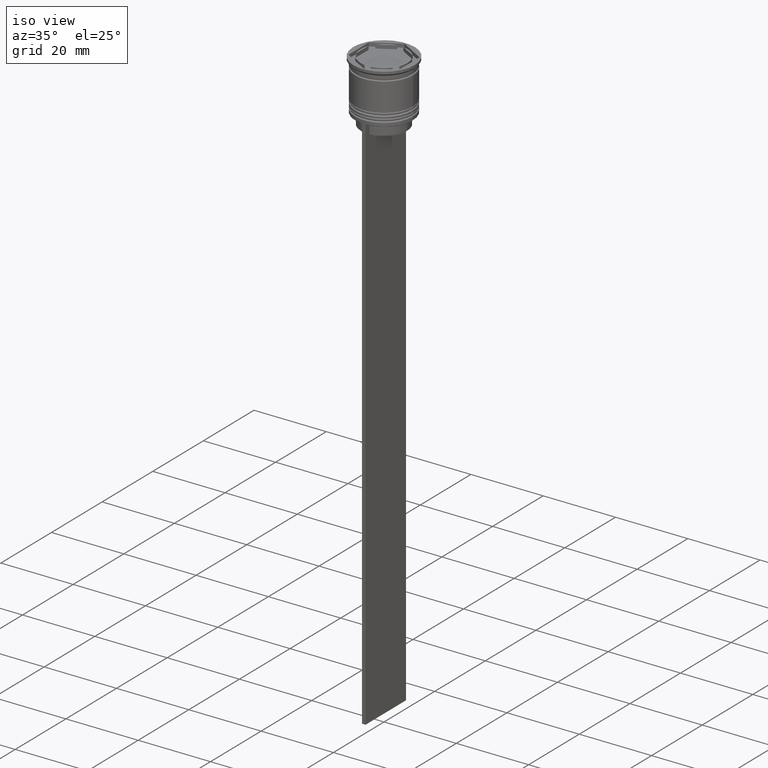
[diagram: clean part render]
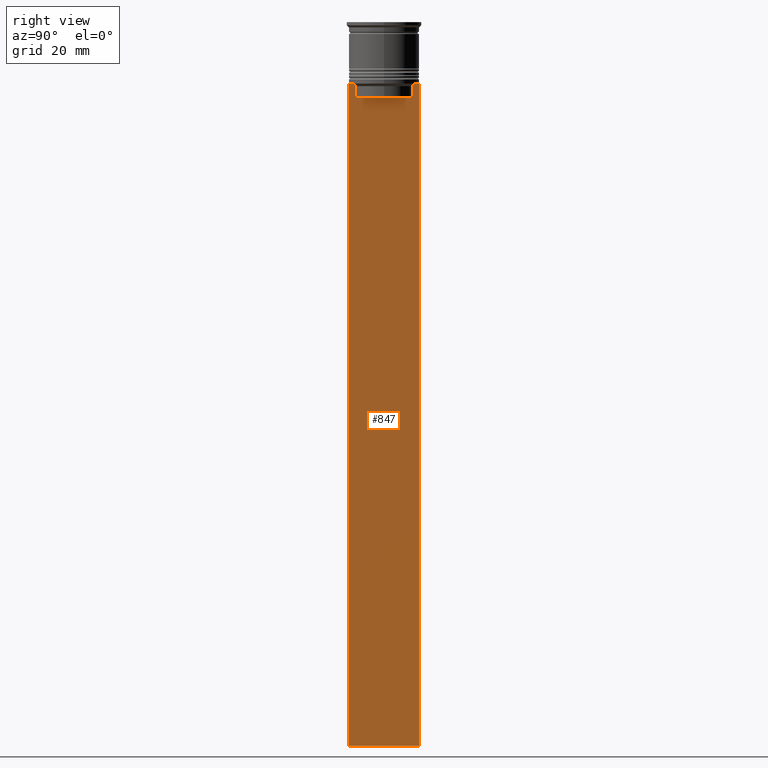
[diagram: tour spotlight — one face highlighted and labeled with its STEP entity id]
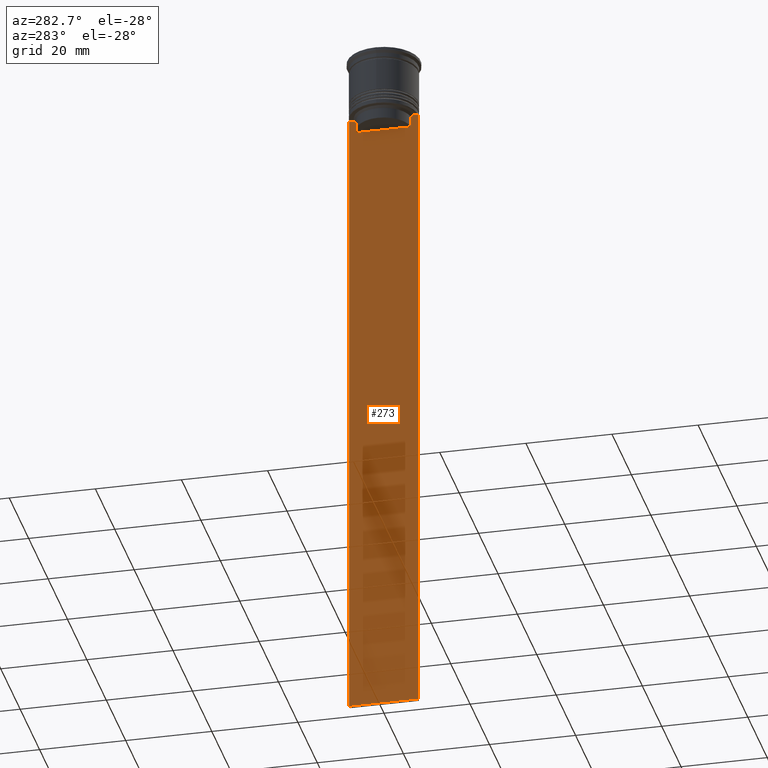
[diagram: tour spotlight — one face highlighted and labeled with its STEP entity id]
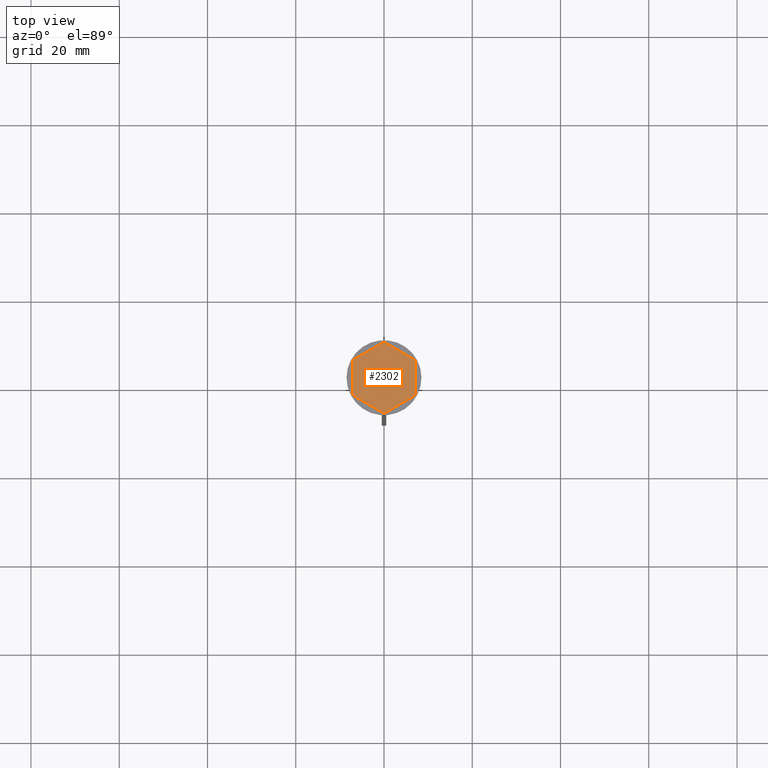
[diagram: tour spotlight — one face highlighted and labeled with its STEP entity id]
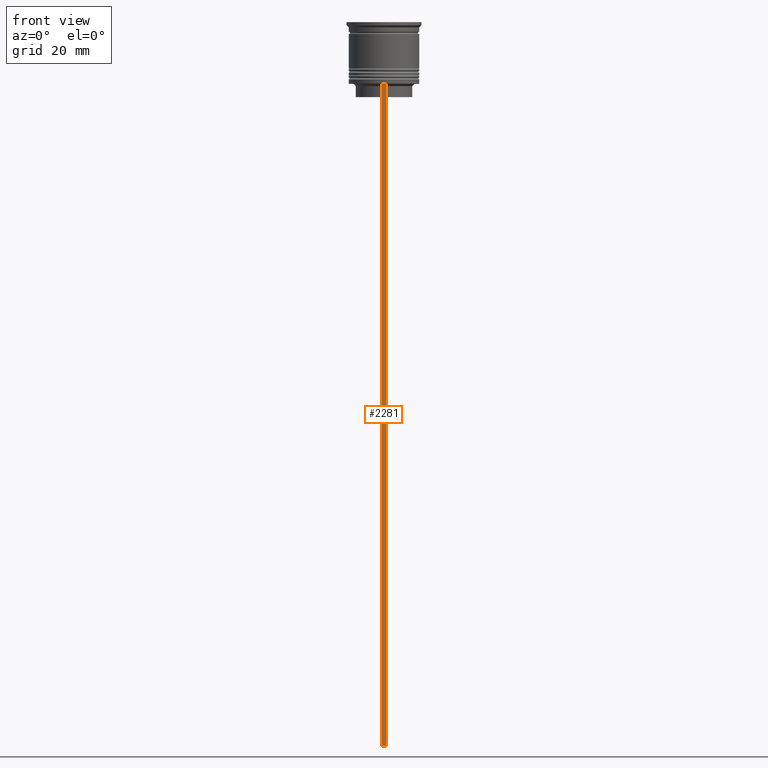
[diagram: tour spotlight — one face highlighted and labeled with its STEP entity id]
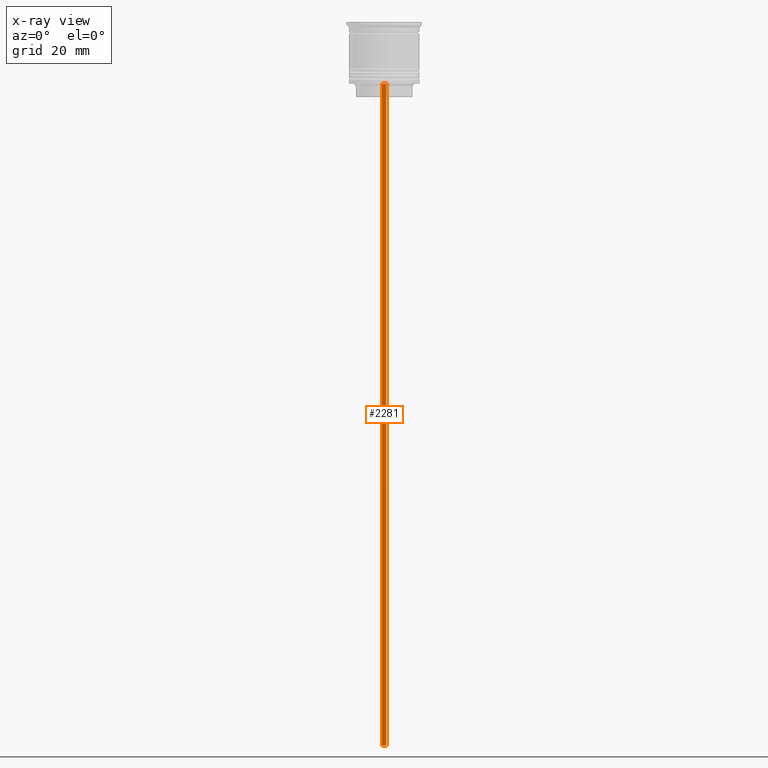
[diagram: x-ray of the same camera — body ghosted, this tour face saturated]
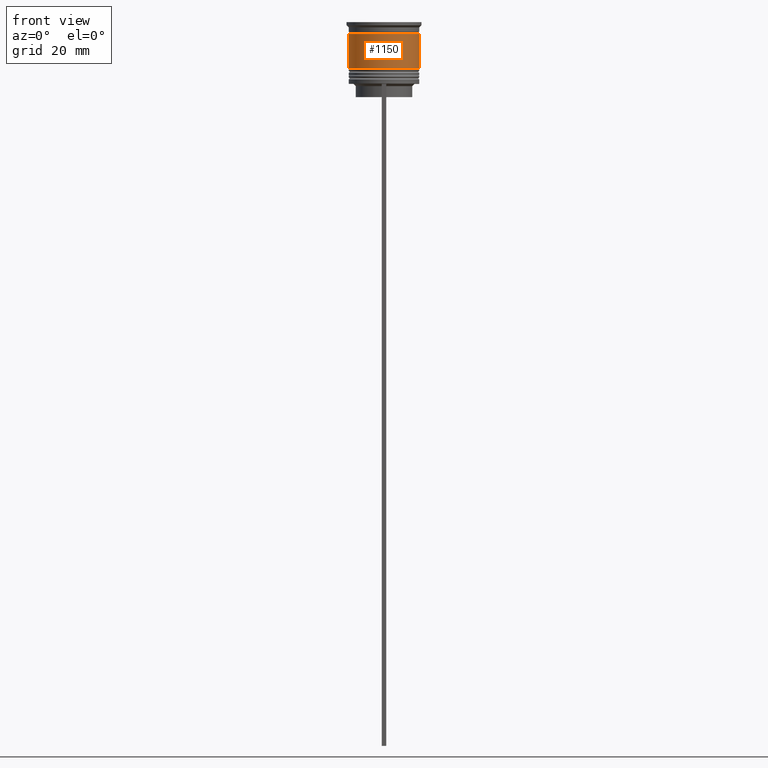
[diagram: tour spotlight — one face highlighted and labeled with its STEP entity id]
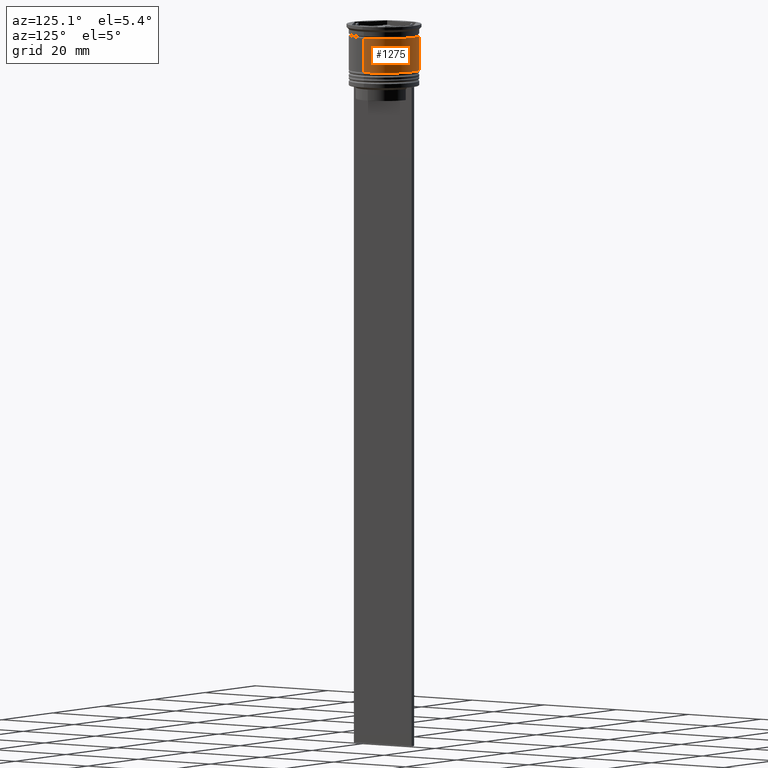
[diagram: tour spotlight — one face highlighted and labeled with its STEP entity id]
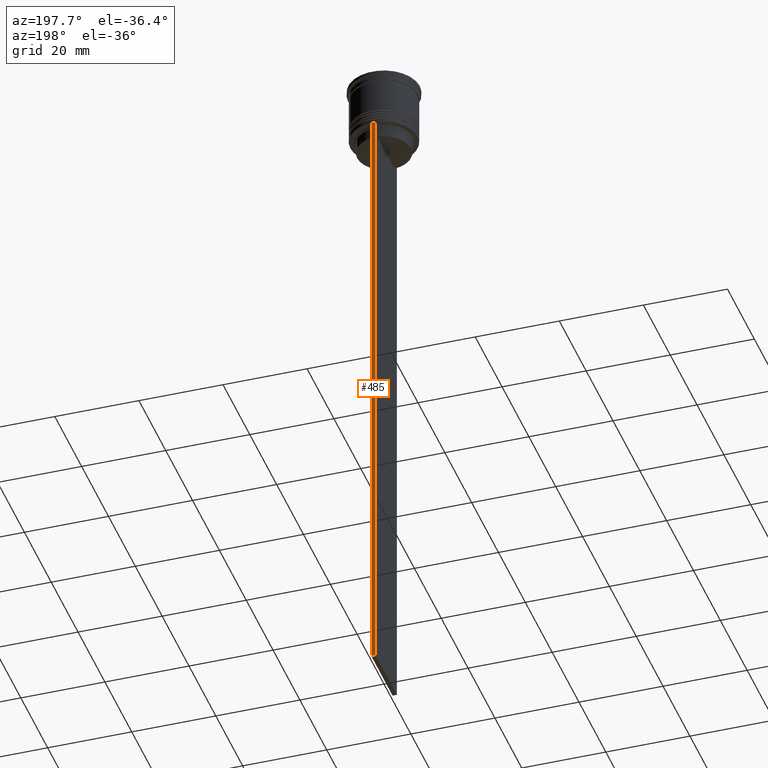
[diagram: tour spotlight — one face highlighted and labeled with its STEP entity id]
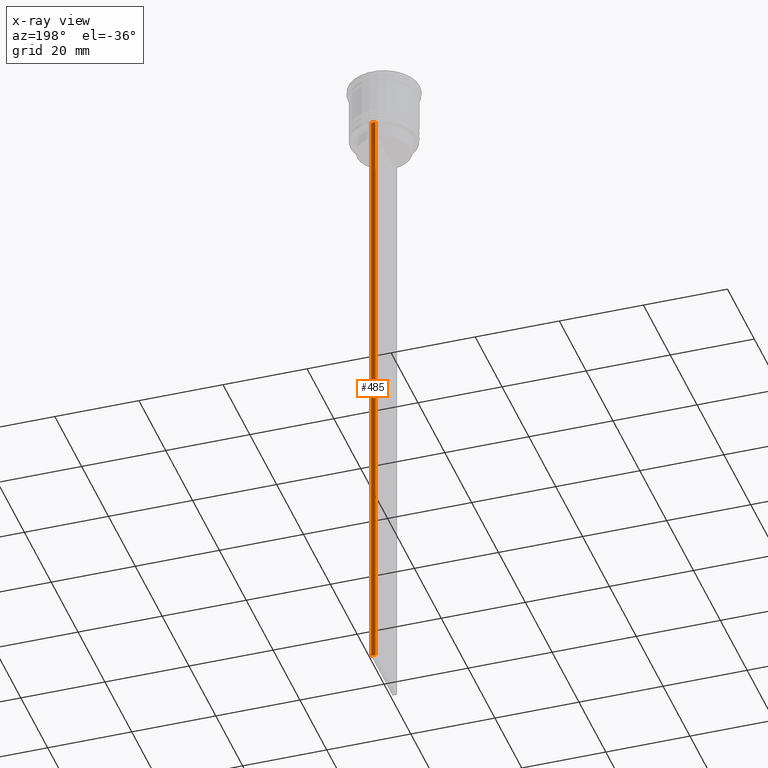
[diagram: x-ray of the same camera — body ghosted, this tour face saturated]
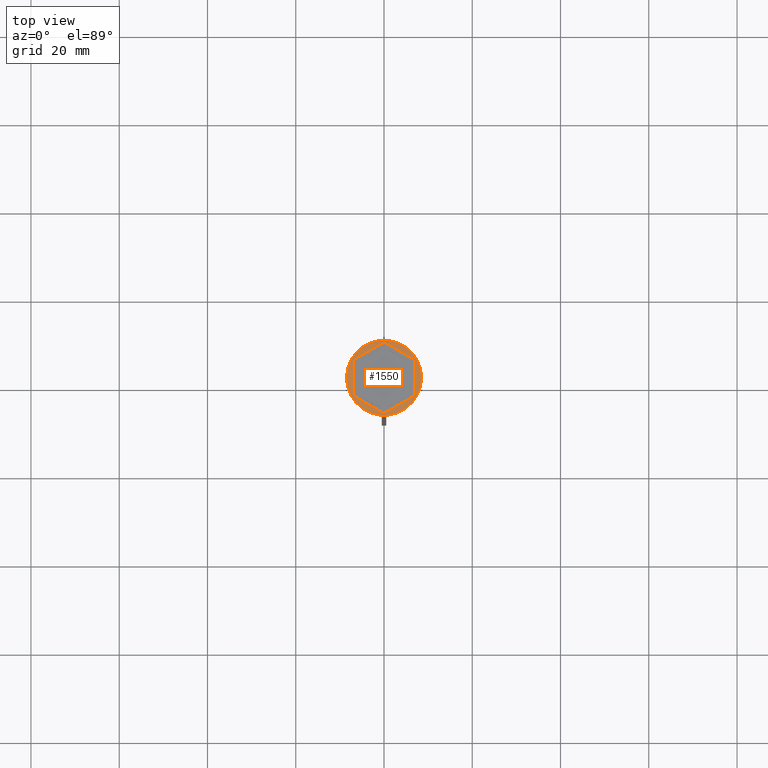
[diagram: tour spotlight — one face highlighted and labeled with its STEP entity id]
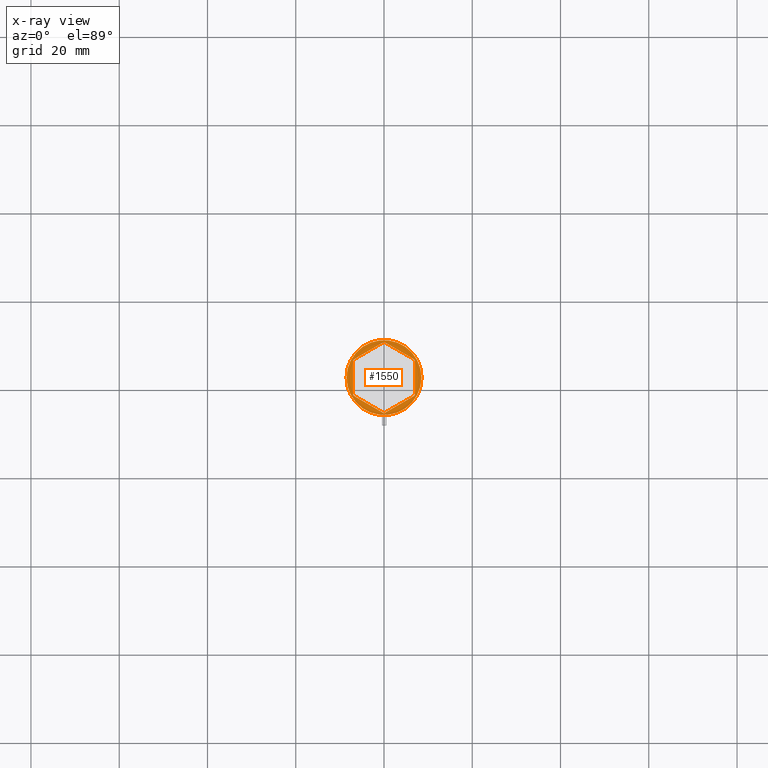
[diagram: x-ray of the same camera — body ghosted, this tour face saturated]
A machine part: a face-by-face anatomy tour. The part has 90 B-rep faces; the first image is the clean iso view, then the 8 largest visible faces are spotlighted one at a time (largest first), each with its STEP entity span.

Face 1 — right view, entity #847. In plain terms, the highlighted planar face has unit normal (-1, 0, 0).
Definition (entity closure, byte-faithful):
#102 = DIRECTION ( 'NONE',  ( 0.000000000000000000, -1.000000000000000000, 0.000000000000000000 ) ) ;
#136 = VERTEX_POINT ( 'NONE', #596 ) ;
#183 = VERTEX_POINT ( 'NONE', #657 ) ;
#200 = DIRECTION ( 'NONE',  ( 0.000000000000000000, -1.000000000000000000, 0.000000000000000000 ) ) ;
#233 = ORIENTED_EDGE ( 'NONE', *, *, #848, .T. ) ;
#255 = VECTOR ( 'NONE', #102, 1000.000000000000000 ) ;
#284 = CARTESIAN_POINT ( 'NONE',  ( 0.5000000000000001110, -8.000000000000003553, -14.00000000000000178 ) ) ;
#309 = DIRECTION ( 'NONE',  ( 0.000000000000000000, 0.000000000000000000, -1.000000000000000000 ) ) ;
#374 = ORIENTED_EDGE ( 'NONE', *, *, #1525, .T. ) ;
#396 = VERTEX_POINT ( 'NONE', #963 ) ;
#427 = CARTESIAN_POINT ( 'NONE',  ( 0.5000000000000001110, 7.999999999999996447, -163.9999999999999716 ) ) ;
#428 = CARTESIAN_POINT ( 'NONE',  ( 0.5000000000000001110, 6.547597841304911626, -14.33335192459222718 ) ) ;
#435 = EDGE_CURVE ( 'NONE', #1912, #136, #601, .T. ) ;
#474 = CARTESIAN_POINT ( 'NONE',  ( 0.5000000000000001110, 6.714736947114692711, -14.16668390704818847 ) ) ;
#562 = CARTESIAN_POINT ( 'NONE',  ( 0.5000000000000001110, -8.000000000000003553, -14.00000000000000178 ) ) ;
#564 = VERTEX_POINT ( 'NONE', #1041 ) ;
#592 = EDGE_CURVE ( 'NONE', #2283, #396, #1892, .T. ) ;
#596 = CARTESIAN_POINT ( 'NONE',  ( 0.5000000000000001110, -7.884161337770806632, -14.00000000000000178 ) ) ;
#598 = ORIENTED_EDGE ( 'NONE', *, *, #2262, .F. ) ;
#599 = CARTESIAN_POINT ( 'NONE',  ( 0.5000000000000001110, 6.380438856379708312, -17.00000000000000000 ) ) ;
#601 = LINE ( 'NONE', #746, #1097 ) ;
#628 = ORIENTED_EDGE ( 'NONE', *, *, #1287, .T. ) ;
#646 = EDGE_CURVE ( 'NONE', #136, #1157, #2420, .T. ) ;
#657 = CARTESIAN_POINT ( 'NONE',  ( 0.5000000000000001110, -6.380438856379708312, -14.50000000000000000 ) ) ;
#659 = VECTOR ( 'NONE', #1376, 1000.000000000000000 ) ;
#685 = EDGE_CURVE ( 'NONE', #1157, #689, #1072, .T. ) ;
#687 = CARTESIAN_POINT ( 'NONE',  ( 0.5000000000000001110, -6.380438856379708312, -14.50000000000000000 ) ) ;
#689 = VERTEX_POINT ( 'NONE', #880 ) ;
#744 = DIRECTION ( 'NONE',  ( 0.000000000000000000, -1.000000000000000000, 0.000000000000000000 ) ) ;
#746 = CARTESIAN_POINT ( 'NONE',  ( 0.5000000000000001110, -8.000000000000003553, -14.00000000000000178 ) ) ;
#783 = LINE ( 'NONE', #2139, #1635 ) ;
#818 = LINE ( 'NONE', #841, #659 ) ;
#830 = CARTESIAN_POINT ( 'NONE',  ( 0.5000000000000001110, -8.000000000000003553, -14.00000000000000178 ) ) ;
#841 = CARTESIAN_POINT ( 'NONE',  ( 0.5000000000000001110, -6.380438856379708312, 0.000000000000000000 ) ) ;
#844 = LINE ( 'NONE', #284, #1879 ) ;
#847 = ADVANCED_FACE ( 'NONE', ( #1077 ), #1848, .F. ) ;
#848 = EDGE_CURVE ( 'NONE', #183, #1912, #1771, .T. ) ;
#880 = CARTESIAN_POINT ( 'NONE',  ( 0.5000000000000001110, -8.000000000000003553, -163.9999999999999716 ) ) ;
#883 = EDGE_CURVE ( 'NONE', #689, #1693, #2072, .T. ) ;
#884 = DIRECTION ( 'NONE',  ( -1.000000000000000000, 0.000000000000000000, 0.000000000000000000 ) ) ;
#887 = CARTESIAN_POINT ( 'NONE',  ( 0.5000000000000001110, -8.000000000000003553, -163.9999999999999716 ) ) ;
#893 = CARTESIAN_POINT ( 'NONE',  ( 0.5000000000000001110, -8.000000000000003553, 2.031219541881394530 ) ) ;
#950 = ORIENTED_EDGE ( 'NONE', *, *, #646, .T. ) ;
#963 = CARTESIAN_POINT ( 'NONE',  ( 0.5000000000000001110, 6.380438856379708312, -14.50000000000000000 ) ) ;
#1041 = CARTESIAN_POINT ( 'NONE',  ( 0.5000000000000001110, 7.999999999999996447, -14.00000000000000178 ) ) ;
#1058 = CARTESIAN_POINT ( 'NONE',  ( 0.5000000000000001110, 6.399999999999999467, -17.00000000000000000 ) ) ;
#1063 = LINE ( 'NONE', #2014, #1714 ) ;
#1072 = LINE ( 'NONE', #893, #1466 ) ;
#1077 = FACE_OUTER_BOUND ( 'NONE', #2362, .T. ) ;
#1097 = VECTOR ( 'NONE', #200, 1000.000000000000000 ) ;
#1157 = VERTEX_POINT ( 'NONE', #830 ) ;
#1161 = VERTEX_POINT ( 'NONE', #1211 ) ;
#1211 = CARTESIAN_POINT ( 'NONE',  ( 0.5000000000000001110, -6.380438856379708312, -17.00000000000000000 ) ) ;
#1227 = EDGE_CURVE ( 'NONE', #1161, #183, #818, .T. ) ;
#1283 = DIRECTION ( 'NONE',  ( 0.000000000000000000, -1.000000000000000000, 0.000000000000000000 ) ) ;
#1287 = EDGE_CURVE ( 'NONE', #2442, #1161, #2011, .T. ) ;
#1343 = ORIENTED_EDGE ( 'NONE', *, *, #1920, .T. ) ;
#1376 = DIRECTION ( 'NONE',  ( -0.000000000000000000, -0.000000000000000000, 1.000000000000000000 ) ) ;
#1385 = AXIS2_PLACEMENT_3D ( 'NONE', #1703, #884, #1471 ) ;
#1444 = CARTESIAN_POINT ( 'NONE',  ( 0.5000000000000001110, -6.547597841511247019, -14.33335192438652150 ) ) ;
#1448 = CARTESIAN_POINT ( 'NONE',  ( 0.5000000000000001110, -8.000000000000003553, -14.00000000000000178 ) ) ;
#1466 = VECTOR ( 'NONE', #309, 1000.000000000000000 ) ;
#1471 = DIRECTION ( 'NONE',  ( 0.000000000000000000, 0.000000000000000000, 1.000000000000000000 ) ) ;
#1473 = VECTOR ( 'NONE', #744, 1000.000000000000000 ) ;
#1525 = EDGE_CURVE ( 'NONE', #2405, #2283, #1702, .T. ) ;
#1556 = DIRECTION ( 'NONE',  ( 0.000000000000000000, 0.000000000000000000, -1.000000000000000000 ) ) ;
#1576 = CARTESIAN_POINT ( 'NONE',  ( 0.5000000000000001110, 6.881860213634098500, -14.00000000000000178 ) ) ;
#1588 = CARTESIAN_POINT ( 'NONE',  ( 0.5000000000000001110, 6.881860213634098500, -14.00000000000000178 ) ) ;
#1635 = VECTOR ( 'NONE', #1556, 1000.000000000000000 ) ;
#1669 = VECTOR ( 'NONE', #1834, 1000.000000000000000 ) ;
#1693 = VERTEX_POINT ( 'NONE', #427 ) ;
#1702 = LINE ( 'NONE', #562, #1473 ) ;
#1703 = CARTESIAN_POINT ( 'NONE',  ( 0.5000000000000001110, -8.000000000000003553, 2.031219541881394530 ) ) ;
#1714 = VECTOR ( 'NONE', #1810, 1000.000000000000000 ) ;
#1767 = ORIENTED_EDGE ( 'NONE', *, *, #592, .T. ) ;
#1771 = B_SPLINE_CURVE_WITH_KNOTS ( 'NONE', 3,
 ( #687, #1444, #2269, #1863 ),
 .UNSPECIFIED., .F., .F.,
 ( 4, 4 ),
 ( 0.02996184199614751464, 0.03067452609193705923 ),
 .UNSPECIFIED. ) ;
#1810 = DIRECTION ( 'NONE',  ( 0.000000000000000000, 0.000000000000000000, -1.000000000000000000 ) ) ;
#1818 = CARTESIAN_POINT ( 'NONE',  ( 0.5000000000000001110, 7.884161337770806632, -14.00000000000000178 ) ) ;
#1821 = ORIENTED_EDGE ( 'NONE', *, *, #1227, .T. ) ;
#1834 = DIRECTION ( 'NONE',  ( 0.000000000000000000, -1.000000000000000000, 0.000000000000000000 ) ) ;
#1848 = PLANE ( 'NONE',  #1385 ) ;
#1863 = CARTESIAN_POINT ( 'NONE',  ( 0.5000000000000001110, -6.881860213634098500, -14.00000000000000178 ) ) ;
#1879 = VECTOR ( 'NONE', #1283, 1000.000000000000000 ) ;
#1892 = B_SPLINE_CURVE_WITH_KNOTS ( 'NONE', 3,
 ( #1588, #474, #428, #2021 ),
 .UNSPECIFIED., .F., .F.,
 ( 4, 4 ),
 ( 0.01172465562756038263, 0.01243276816391822651 ),
 .UNSPECIFIED. ) ;
#1901 = EDGE_CURVE ( 'NONE', #396, #2442, #1063, .T. ) ;
#1912 = VERTEX_POINT ( 'NONE', #2207 ) ;
#1920 = EDGE_CURVE ( 'NONE', #564, #2405, #844, .T. ) ;
#1939 = ORIENTED_EDGE ( 'NONE', *, *, #435, .T. ) ;
#2011 = LINE ( 'NONE', #1058, #1669 ) ;
#2014 = CARTESIAN_POINT ( 'NONE',  ( 0.5000000000000001110, 6.380438856379708312, 0.000000000000000000 ) ) ;
#2021 = CARTESIAN_POINT ( 'NONE',  ( 0.5000000000000001110, 6.380438856379708312, -14.50000000000000000 ) ) ;
#2072 = LINE ( 'NONE', #887, #2193 ) ;
#2102 = ORIENTED_EDGE ( 'NONE', *, *, #883, .T. ) ;
#2139 = CARTESIAN_POINT ( 'NONE',  ( 0.5000000000000001110, 7.999999999999996447, 2.031219541881394530 ) ) ;
#2193 = VECTOR ( 'NONE', #2219, 1000.000000000000000 ) ;
#2207 = CARTESIAN_POINT ( 'NONE',  ( 0.5000000000000001110, -6.881860213634098500, -14.00000000000000178 ) ) ;
#2219 = DIRECTION ( 'NONE',  ( 0.000000000000000000, 1.000000000000000000, 0.000000000000000000 ) ) ;
#2228 = ORIENTED_EDGE ( 'NONE', *, *, #685, .T. ) ;
#2262 = EDGE_CURVE ( 'NONE', #564, #1693, #783, .T. ) ;
#2269 = CARTESIAN_POINT ( 'NONE',  ( 0.5000000000000001110, -6.714736947305993908, -14.16668390685738821 ) ) ;
#2283 = VERTEX_POINT ( 'NONE', #1576 ) ;
#2362 = EDGE_LOOP ( 'NONE', ( #374, #1767, #2376, #628, #1821, #233, #1939, #950, #2228, #2102, #598, #1343 ) ) ;
#2376 = ORIENTED_EDGE ( 'NONE', *, *, #1901, .T. ) ;
#2405 = VERTEX_POINT ( 'NONE', #1818 ) ;
#2420 = LINE ( 'NONE', #1448, #255 ) ;
#2442 = VERTEX_POINT ( 'NONE', #599 ) ;

Face 2 — auxiliary view, entity #273. In plain terms, the highlighted planar face has unit normal (-1, 0, 0).
Definition (entity closure, byte-faithful):
#49 = ORIENTED_EDGE ( 'NONE', *, *, #2333, .F. ) ;
#60 = LINE ( 'NONE', #412, #1915 ) ;
#93 = CARTESIAN_POINT ( 'NONE',  ( -0.4999999999999998890, -8.000000000000003553, 2.031219541881394530 ) ) ;
#112 = CARTESIAN_POINT ( 'NONE',  ( -0.4999999999999998890, -7.884161337770806632, -14.00000000000000178 ) ) ;
#114 = CARTESIAN_POINT ( 'NONE',  ( -0.4999999999999998890, 6.380438856379708312, 0.000000000000000000 ) ) ;
#119 = LINE ( 'NONE', #909, #1217 ) ;
#186 = VECTOR ( 'NONE', #539, 1000.000000000000000 ) ;
#231 = DIRECTION ( 'NONE',  ( 0.000000000000000000, -1.000000000000000000, 0.000000000000000000 ) ) ;
#246 = B_SPLINE_CURVE_WITH_KNOTS ( 'NONE', 3,
 ( #2268, #334, #547, #1319 ),
 .UNSPECIFIED., .F., .F.,
 ( 4, 4 ),
 ( 0.02996184199614749730, 0.03067452609193703841 ),
 .UNSPECIFIED. ) ;
#273 = ADVANCED_FACE ( 'NONE', ( #2428 ), #300, .T. ) ;
#290 = CARTESIAN_POINT ( 'NONE',  ( -0.4999999999999998890, 7.999999999999996447, -163.9999999999999716 ) ) ;
#300 = PLANE ( 'NONE',  #652 ) ;
#318 = VERTEX_POINT ( 'NONE', #2231 ) ;
#334 = CARTESIAN_POINT ( 'NONE',  ( -0.4999999999999998890, -6.547597841511246131, -14.33335192438652328 ) ) ;
#339 = VERTEX_POINT ( 'NONE', #112 ) ;
#384 = CARTESIAN_POINT ( 'NONE',  ( -0.4999999999999998890, -6.881860213634098500, -14.00000000000000178 ) ) ;
#389 = VERTEX_POINT ( 'NONE', #1921 ) ;
#393 = ORIENTED_EDGE ( 'NONE', *, *, #1812, .F. ) ;
#409 = CARTESIAN_POINT ( 'NONE',  ( -0.4999999999999998890, 6.714736947114692711, -14.16668390704818847 ) ) ;
#412 = CARTESIAN_POINT ( 'NONE',  ( -0.4999999999999998890, -8.000000000000003553, -14.00000000000000178 ) ) ;
#418 = VECTOR ( 'NONE', #231, 1000.000000000000000 ) ;
#465 = CARTESIAN_POINT ( 'NONE',  ( -0.4999999999999998890, -8.000000000000003553, -163.9999999999999716 ) ) ;
#486 = CARTESIAN_POINT ( 'NONE',  ( -0.4999999999999998890, -6.380438856379708312, 0.000000000000000000 ) ) ;
#539 = DIRECTION ( 'NONE',  ( 0.000000000000000000, 0.000000000000000000, -1.000000000000000000 ) ) ;
#547 = CARTESIAN_POINT ( 'NONE',  ( -0.4999999999999998890, -6.714736947305992132, -14.16668390685738999 ) ) ;
#629 = DIRECTION ( 'NONE',  ( 0.000000000000000000, 0.000000000000000000, -1.000000000000000000 ) ) ;
#651 = B_SPLINE_CURVE_WITH_KNOTS ( 'NONE', 3,
 ( #789, #409, #1690, #2076 ),
 .UNSPECIFIED., .F., .F.,
 ( 4, 4 ),
 ( 0.01172465562756038263, 0.01243276816391822651 ),
 .UNSPECIFIED. ) ;
#652 = AXIS2_PLACEMENT_3D ( 'NONE', #93, #901, #1254 ) ;
#658 = VERTEX_POINT ( 'NONE', #2254 ) ;
#666 = LINE ( 'NONE', #114, #1837 ) ;
#690 = DIRECTION ( 'NONE',  ( -0.000000000000000000, -0.000000000000000000, 1.000000000000000000 ) ) ;
#731 = EDGE_CURVE ( 'NONE', #658, #1321, #119, .T. ) ;
#789 = CARTESIAN_POINT ( 'NONE',  ( -0.4999999999999998890, 6.881860213634098500, -14.00000000000000178 ) ) ;
#882 = CARTESIAN_POINT ( 'NONE',  ( -0.4999999999999998890, -8.000000000000003553, -14.00000000000000178 ) ) ;
#901 = DIRECTION ( 'NONE',  ( -1.000000000000000000, 0.000000000000000000, 0.000000000000000000 ) ) ;
#909 = CARTESIAN_POINT ( 'NONE',  ( -0.4999999999999998890, -8.000000000000003553, -14.00000000000000178 ) ) ;
#922 = DIRECTION ( 'NONE',  ( 0.000000000000000000, -1.000000000000000000, 0.000000000000000000 ) ) ;
#967 = VERTEX_POINT ( 'NONE', #1486 ) ;
#1005 = CARTESIAN_POINT ( 'NONE',  ( -0.4999999999999998890, -6.380438856379708312, -17.00000000000000000 ) ) ;
#1008 = VERTEX_POINT ( 'NONE', #384 ) ;
#1076 = CARTESIAN_POINT ( 'NONE',  ( -0.4999999999999998890, 6.881860213634098500, -14.00000000000000178 ) ) ;
#1149 = EDGE_CURVE ( 'NONE', #318, #2167, #1781, .T. ) ;
#1152 = ORIENTED_EDGE ( 'NONE', *, *, #2054, .F. ) ;
#1183 = CARTESIAN_POINT ( 'NONE',  ( -0.4999999999999998890, 7.999999999999996447, 2.031219541881394530 ) ) ;
#1185 = ORIENTED_EDGE ( 'NONE', *, *, #2032, .F. ) ;
#1217 = VECTOR ( 'NONE', #1683, 1000.000000000000000 ) ;
#1223 = CARTESIAN_POINT ( 'NONE',  ( -0.4999999999999998890, 6.399999999999999467, -17.00000000000000000 ) ) ;
#1248 = DIRECTION ( 'NONE',  ( 0.000000000000000000, 1.000000000000000000, 0.000000000000000000 ) ) ;
#1254 = DIRECTION ( 'NONE',  ( 0.000000000000000000, 0.000000000000000000, 1.000000000000000000 ) ) ;
#1272 = VECTOR ( 'NONE', #690, 1000.000000000000000 ) ;
#1313 = VECTOR ( 'NONE', #1248, 1000.000000000000000 ) ;
#1319 = CARTESIAN_POINT ( 'NONE',  ( -0.4999999999999998890, -6.881860213634098500, -14.00000000000000178 ) ) ;
#1321 = VERTEX_POINT ( 'NONE', #1076 ) ;
#1322 = EDGE_LOOP ( 'NONE', ( #2490, #1849, #2252, #1545, #49, #1338, #1185, #1396, #1152, #393, #1589, #2183 ) ) ;
#1323 = CARTESIAN_POINT ( 'NONE',  ( -0.4999999999999998890, -8.000000000000003553, -14.00000000000000178 ) ) ;
#1338 = ORIENTED_EDGE ( 'NONE', *, *, #2448, .F. ) ;
#1347 = VERTEX_POINT ( 'NONE', #882 ) ;
#1348 = VECTOR ( 'NONE', #629, 1000.000000000000000 ) ;
#1351 = VECTOR ( 'NONE', #922, 1000.000000000000000 ) ;
#1361 = CARTESIAN_POINT ( 'NONE',  ( -0.4999999999999998890, -8.000000000000003553, -163.9999999999999716 ) ) ;
#1396 = ORIENTED_EDGE ( 'NONE', *, *, #1524, .F. ) ;
#1486 = CARTESIAN_POINT ( 'NONE',  ( -0.4999999999999998890, -6.380438856379708312, -14.50000000000000000 ) ) ;
#1499 = CARTESIAN_POINT ( 'NONE',  ( -0.4999999999999998890, -8.000000000000003553, 2.031219541881394530 ) ) ;
#1524 = EDGE_CURVE ( 'NONE', #1008, #339, #1883, .T. ) ;
#1543 = VERTEX_POINT ( 'NONE', #1691 ) ;
#1545 = ORIENTED_EDGE ( 'NONE', *, *, #1609, .T. ) ;
#1553 = LINE ( 'NONE', #1183, #1348 ) ;
#1578 = EDGE_CURVE ( 'NONE', #1543, #658, #60, .T. ) ;
#1589 = ORIENTED_EDGE ( 'NONE', *, *, #1149, .F. ) ;
#1609 = EDGE_CURVE ( 'NONE', #1543, #1724, #1553, .T. ) ;
#1629 = LINE ( 'NONE', #465, #1313 ) ;
#1656 = VERTEX_POINT ( 'NONE', #1361 ) ;
#1683 = DIRECTION ( 'NONE',  ( 0.000000000000000000, -1.000000000000000000, 0.000000000000000000 ) ) ;
#1685 = CARTESIAN_POINT ( 'NONE',  ( -0.4999999999999998890, -8.000000000000003553, -14.00000000000000178 ) ) ;
#1690 = CARTESIAN_POINT ( 'NONE',  ( -0.4999999999999998890, 6.547597841304911626, -14.33335192459222718 ) ) ;
#1691 = CARTESIAN_POINT ( 'NONE',  ( -0.4999999999999998890, 7.999999999999996447, -14.00000000000000178 ) ) ;
#1719 = LINE ( 'NONE', #1685, #1351 ) ;
#1724 = VERTEX_POINT ( 'NONE', #290 ) ;
#1781 = LINE ( 'NONE', #1223, #418 ) ;
#1812 = EDGE_CURVE ( 'NONE', #2167, #967, #2222, .T. ) ;
#1827 = EDGE_CURVE ( 'NONE', #389, #318, #666, .T. ) ;
#1837 = VECTOR ( 'NONE', #2210, 1000.000000000000000 ) ;
#1849 = ORIENTED_EDGE ( 'NONE', *, *, #731, .F. ) ;
#1883 = LINE ( 'NONE', #1323, #2161 ) ;
#1915 = VECTOR ( 'NONE', #2323, 1000.000000000000000 ) ;
#1921 = CARTESIAN_POINT ( 'NONE',  ( -0.4999999999999998890, 6.380438856379708312, -14.50000000000000000 ) ) ;
#2032 = EDGE_CURVE ( 'NONE', #339, #1347, #1719, .T. ) ;
#2054 = EDGE_CURVE ( 'NONE', #967, #1008, #246, .T. ) ;
#2076 = CARTESIAN_POINT ( 'NONE',  ( -0.4999999999999998890, 6.380438856379708312, -14.50000000000000000 ) ) ;
#2161 = VECTOR ( 'NONE', #2483, 1000.000000000000000 ) ;
#2167 = VERTEX_POINT ( 'NONE', #1005 ) ;
#2183 = ORIENTED_EDGE ( 'NONE', *, *, #1827, .F. ) ;
#2210 = DIRECTION ( 'NONE',  ( 0.000000000000000000, 0.000000000000000000, -1.000000000000000000 ) ) ;
#2222 = LINE ( 'NONE', #486, #1272 ) ;
#2231 = CARTESIAN_POINT ( 'NONE',  ( -0.4999999999999998890, 6.380438856379708312, -17.00000000000000000 ) ) ;
#2252 = ORIENTED_EDGE ( 'NONE', *, *, #1578, .F. ) ;
#2254 = CARTESIAN_POINT ( 'NONE',  ( -0.4999999999999998890, 7.884161337770806632, -14.00000000000000178 ) ) ;
#2268 = CARTESIAN_POINT ( 'NONE',  ( -0.4999999999999998890, -6.380438856379708312, -14.50000000000000000 ) ) ;
#2323 = DIRECTION ( 'NONE',  ( 0.000000000000000000, -1.000000000000000000, 0.000000000000000000 ) ) ;
#2331 = LINE ( 'NONE', #1499, #186 ) ;
#2333 = EDGE_CURVE ( 'NONE', #1656, #1724, #1629, .T. ) ;
#2428 = FACE_OUTER_BOUND ( 'NONE', #1322, .T. ) ;
#2448 = EDGE_CURVE ( 'NONE', #1347, #1656, #2331, .T. ) ;
#2449 = EDGE_CURVE ( 'NONE', #1321, #389, #651, .T. ) ;
#2483 = DIRECTION ( 'NONE',  ( 0.000000000000000000, -1.000000000000000000, 0.000000000000000000 ) ) ;
#2490 = ORIENTED_EDGE ( 'NONE', *, *, #2449, .F. ) ;

Face 3 — top view, entity #2302. In plain terms, the highlighted planar face has unit normal (0, 0, 1).
Definition (entity closure, byte-faithful):
#10 = EDGE_CURVE ( 'NONE', #1565, #1688, #1606, .T. ) ;
#12 = CARTESIAN_POINT ( 'NONE',  ( 0.000000000000000000, 8.082903768654762899, -1.000000000000000000 ) ) ;
#23 = VECTOR ( 'NONE', #1529, 1000.000000000000000 ) ;
#28 = LINE ( 'NONE', #1516, #299 ) ;
#88 = VECTOR ( 'NONE', #1377, 1000.000000000000114 ) ;
#104 = VERTEX_POINT ( 'NONE', #1798 ) ;
#122 = DIRECTION ( 'NONE',  ( 0.000000000000000000, 0.000000000000000000, 1.000000000000000000 ) ) ;
#127 = CARTESIAN_POINT ( 'NONE',  ( -6.000000000000000000, -3.464101615137754830, -1.000000000000000888 ) ) ;
#141 = CIRCLE ( 'NONE', #779, 6.500000000000000888 ) ;
#154 = EDGE_CURVE ( 'NONE', #2366, #2491, #256, .T. ) ;
#168 = ORIENTED_EDGE ( 'NONE', *, *, #154, .F. ) ;
#197 = ORIENTED_EDGE ( 'NONE', *, *, #517, .F. ) ;
#217 = CIRCLE ( 'NONE', #1914, 6.500000000000000888 ) ;
#227 = CARTESIAN_POINT ( 'NONE',  ( 0.000000000000000000, 6.928203230275507885, -1.000000000000000888 ) ) ;
#240 = FACE_BOUND ( 'NONE', #559, .T. ) ;
#249 = DIRECTION ( 'NONE',  ( 1.000000000000000000, 0.000000000000000000, 0.000000000000000000 ) ) ;
#256 = LINE ( 'NONE', #831, #1381 ) ;
#260 = VECTOR ( 'NONE', #1971, 1000.000000000000000 ) ;
#267 = CARTESIAN_POINT ( 'NONE',  ( 6.000000000000000888, 3.464101615137753942, -1.000000000000000888 ) ) ;
#297 = DIRECTION ( 'NONE',  ( 0.8660254037844387076, -0.4999999999999997224, 0.000000000000000000 ) ) ;
#299 = VECTOR ( 'NONE', #2288, 1000.000000000000000 ) ;
#304 = VECTOR ( 'NONE', #2274, 1000.000000000000114 ) ;
#325 = LINE ( 'NONE', #2218, #345 ) ;
#345 = VECTOR ( 'NONE', #297, 1000.000000000000114 ) ;
#348 = ORIENTED_EDGE ( 'NONE', *, *, #468, .T. ) ;
#364 = EDGE_CURVE ( 'NONE', #2491, #2366, #1138, .T. ) ;
#392 = CARTESIAN_POINT ( 'NONE',  ( -0.8349364905389056180, -6.446152422706632024, -1.000000000000000888 ) ) ;
#400 = CARTESIAN_POINT ( 'NONE',  ( 2.174016704710901386E-15, -8.082903768654762899, -1.000000000000000000 ) ) ;
#433 = VERTEX_POINT ( 'NONE', #392 ) ;
#450 = VERTEX_POINT ( 'NONE', #992 ) ;
#451 = FACE_BOUND ( 'NONE', #806, .T. ) ;
#463 = CARTESIAN_POINT ( 'NONE',  ( -7.000000000000000888, -4.041451884327381450, -1.000000000000000000 ) ) ;
#464 = VERTEX_POINT ( 'NONE', #2295 ) ;
#468 = EDGE_CURVE ( 'NONE', #1951, #2143, #765, .T. ) ;
#480 = DIRECTION ( 'NONE',  ( 1.000000000000000000, 0.000000000000000000, 0.000000000000000000 ) ) ;
#484 = EDGE_CURVE ( 'NONE', #2143, #1565, #28, .T. ) ;
#507 = FACE_OUTER_BOUND ( 'NONE', #2079, .T. ) ;
#516 = EDGE_CURVE ( 'NONE', #450, #1488, #1612, .T. ) ;
#517 = EDGE_CURVE ( 'NONE', #2325, #1360, #609, .T. ) ;
#552 = CARTESIAN_POINT ( 'NONE',  ( 0.000000000000000000, 8.082903768654762899, -1.000000000000000000 ) ) ;
#559 = EDGE_LOOP ( 'NONE', ( #2138, #748 ) ) ;
#560 = EDGE_CURVE ( 'NONE', #104, #635, #1786, .T. ) ;
#566 = DIRECTION ( 'NONE',  ( 0.000000000000000000, 0.000000000000000000, 1.000000000000000000 ) ) ;
#568 = ORIENTED_EDGE ( 'NONE', *, *, #484, .T. ) ;
#579 = ORIENTED_EDGE ( 'NONE', *, *, #1968, .T. ) ;
#586 = VERTEX_POINT ( 'NONE', #463 ) ;
#609 = CIRCLE ( 'NONE', #2387, 6.500000000000000888 ) ;
#611 = DIRECTION ( 'NONE',  ( 0.000000000000000000, 0.000000000000000000, 1.000000000000000000 ) ) ;
#635 = VERTEX_POINT ( 'NONE', #1805 ) ;
#654 = LINE ( 'NONE', #1653, #1680 ) ;
#663 = CIRCLE ( 'NONE', #2085, 6.500000000000000888 ) ;
#670 = CARTESIAN_POINT ( 'NONE',  ( 0.000000000000000000, 0.000000000000000000, -1.000000000000000000 ) ) ;
#696 = AXIS2_PLACEMENT_3D ( 'NONE', #1029, #2345, #1574 ) ;
#708 = EDGE_CURVE ( 'NONE', #433, #1171, #2435, .T. ) ;
#748 = ORIENTED_EDGE ( 'NONE', *, *, #516, .F. ) ;
#753 = EDGE_LOOP ( 'NONE', ( #2186, #2118 ) ) ;
#758 = CARTESIAN_POINT ( 'NONE',  ( -7.000000000000000888, 4.041451884327381450, -1.000000000000000000 ) ) ;
#765 = LINE ( 'NONE', #400, #1788 ) ;
#779 = AXIS2_PLACEMENT_3D ( 'NONE', #670, #2255, #1450 ) ;
#793 = DIRECTION ( 'NONE',  ( 0.000000000000000000, 0.000000000000000000, 1.000000000000000000 ) ) ;
#798 = ORIENTED_EDGE ( 'NONE', *, *, #364, .F. ) ;
#806 = EDGE_LOOP ( 'NONE', ( #798, #168 ) ) ;
#831 = CARTESIAN_POINT ( 'NONE',  ( -1.301042606982605321E-15, -6.928203230275509661, -1.000000000000000888 ) ) ;
#832 = ORIENTED_EDGE ( 'NONE', *, *, #10, .T. ) ;
#853 = CARTESIAN_POINT ( 'NONE',  ( -6.500000000000000888, 0.000000000000000000, -1.000000000000000000 ) ) ;
#855 = VECTOR ( 'NONE', #1480, 1000.000000000000000 ) ;
#874 = ORIENTED_EDGE ( 'NONE', *, *, #1969, .F. ) ;
#908 = LINE ( 'NONE', #552, #304 ) ;
#990 = EDGE_CURVE ( 'NONE', #1171, #433, #217, .T. ) ;
#991 = CARTESIAN_POINT ( 'NONE',  ( 7.000000000000000888, 4.041451884327382338, -1.000000000000000000 ) ) ;
#992 = CARTESIAN_POINT ( 'NONE',  ( 0.8349364905389003999, 6.446152422706633800, -1.000000000000000888 ) ) ;
#1001 = DIRECTION ( 'NONE',  ( 0.8660254037844388186, -0.4999999999999998335, 0.000000000000000000 ) ) ;
#1014 = CIRCLE ( 'NONE', #1062, 6.500000000000000888 ) ;
#1019 = EDGE_CURVE ( 'NONE', #1292, #2385, #1014, .T. ) ;
#1029 = CARTESIAN_POINT ( 'NONE',  ( 0.000000000000000000, 0.000000000000000000, -1.000000000000000000 ) ) ;
#1062 = AXIS2_PLACEMENT_3D ( 'NONE', #2094, #566, #2314 ) ;
#1133 = CARTESIAN_POINT ( 'NONE',  ( -6.000000000000000000, 3.464101615137752166, -1.000000000000000888 ) ) ;
#1138 = CIRCLE ( 'NONE', #1826, 6.500000000000000888 ) ;
#1170 = DIRECTION ( 'NONE',  ( 0.8660254037844384856, 0.5000000000000001110, 0.000000000000000000 ) ) ;
#1171 = VERTEX_POINT ( 'NONE', #1605 ) ;
#1215 = VECTOR ( 'NONE', #1001, 999.9999999999998863 ) ;
#1222 = FACE_BOUND ( 'NONE', #1861, .T. ) ;
#1263 = DIRECTION ( 'NONE',  ( -0.8660254037844387076, -0.4999999999999998890, 0.000000000000000000 ) ) ;
#1278 = DIRECTION ( 'NONE',  ( 0.000000000000000000, 0.000000000000000000, 1.000000000000000000 ) ) ;
#1292 = VERTEX_POINT ( 'NONE', #1857 ) ;
#1303 = LINE ( 'NONE', #758, #2322 ) ;
#1325 = EDGE_LOOP ( 'NONE', ( #1582, #2304 ) ) ;
#1360 = VERTEX_POINT ( 'NONE', #1482 ) ;
#1368 = CARTESIAN_POINT ( 'NONE',  ( 7.000000000000000888, 4.041451884327382338, -1.000000000000000000 ) ) ;
#1377 = DIRECTION ( 'NONE',  ( -0.8660254037844387076, 0.4999999999999998890, 0.000000000000000000 ) ) ;
#1380 = EDGE_CURVE ( 'NONE', #1488, #450, #141, .T. ) ;
#1381 = VECTOR ( 'NONE', #1263, 1000.000000000000000 ) ;
#1421 = CARTESIAN_POINT ( 'NONE',  ( 0.000000000000000000, 0.000000000000000000, -1.000000000000000000 ) ) ;
#1450 = DIRECTION ( 'NONE',  ( 1.000000000000000000, 0.000000000000000000, 0.000000000000000000 ) ) ;
#1454 = CARTESIAN_POINT ( 'NONE',  ( 2.174016704710901386E-15, -8.082903768654762899, -1.000000000000000000 ) ) ;
#1480 = DIRECTION ( 'NONE',  ( -0.8660254037844385966, 0.5000000000000001110, 0.000000000000000000 ) ) ;
#1482 = CARTESIAN_POINT ( 'NONE',  ( -6.000000000000000000, -2.500000000000001776, -1.000000000000000888 ) ) ;
#1488 = VERTEX_POINT ( 'NONE', #1894 ) ;
#1489 = EDGE_CURVE ( 'NONE', #1688, #464, #908, .T. ) ;
#1516 = CARTESIAN_POINT ( 'NONE',  ( 7.000000000000000000, -4.041451884327381450, -1.000000000000000000 ) ) ;
#1522 = ORIENTED_EDGE ( 'NONE', *, *, #1489, .T. ) ;
#1529 = DIRECTION ( 'NONE',  ( 0.000000000000000000, 1.000000000000000000, 0.000000000000000000 ) ) ;
#1565 = VERTEX_POINT ( 'NONE', #991 ) ;
#1574 = DIRECTION ( 'NONE',  ( 1.000000000000000000, 0.000000000000000000, 0.000000000000000000 ) ) ;
#1575 = ORIENTED_EDGE ( 'NONE', *, *, #2068, .T. ) ;
#1582 = ORIENTED_EDGE ( 'NONE', *, *, #1019, .F. ) ;
#1586 = LINE ( 'NONE', #227, #260 ) ;
#1605 = CARTESIAN_POINT ( 'NONE',  ( -5.165063509461097269, -3.946152422706633356, -1.000000000000000888 ) ) ;
#1606 = LINE ( 'NONE', #1368, #88 ) ;
#1612 = LINE ( 'NONE', #267, #1215 ) ;
#1641 = CARTESIAN_POINT ( 'NONE',  ( 5.165063509461097269, -3.946152422706631580, -1.000000000000000888 ) ) ;
#1653 = CARTESIAN_POINT ( 'NONE',  ( 5.999999999999999112, -3.464101615137755719, -1.000000000000000888 ) ) ;
#1679 = EDGE_CURVE ( 'NONE', #635, #104, #1586, .T. ) ;
#1680 = VECTOR ( 'NONE', #2213, 1000.000000000000000 ) ;
#1688 = VERTEX_POINT ( 'NONE', #12 ) ;
#1732 = ORIENTED_EDGE ( 'NONE', *, *, #1679, .F. ) ;
#1748 = ORIENTED_EDGE ( 'NONE', *, *, #560, .F. ) ;
#1768 = CARTESIAN_POINT ( 'NONE',  ( 7.000000000000000000, -4.041451884327381450, -1.000000000000000000 ) ) ;
#1786 = CIRCLE ( 'NONE', #696, 6.500000000000000888 ) ;
#1788 = VECTOR ( 'NONE', #1170, 1000.000000000000227 ) ;
#1798 = CARTESIAN_POINT ( 'NONE',  ( -0.8349364905388981795, 6.446152422706633800, -1.000000000000000888 ) ) ;
#1805 = CARTESIAN_POINT ( 'NONE',  ( -5.165063509461101710, 3.946152422706626250, -1.000000000000000888 ) ) ;
#1807 = PLANE ( 'NONE',  #2199 ) ;
#1826 = AXIS2_PLACEMENT_3D ( 'NONE', #2112, #793, #1931 ) ;
#1850 = CARTESIAN_POINT ( 'NONE',  ( 0.000000000000000000, 0.000000000000000000, -1.000000000000000000 ) ) ;
#1857 = CARTESIAN_POINT ( 'NONE',  ( 5.999999999999999112, -2.500000000000003109, -1.000000000000000888 ) ) ;
#1861 = EDGE_LOOP ( 'NONE', ( #1748, #1732 ) ) ;
#1894 = CARTESIAN_POINT ( 'NONE',  ( 5.165063509461097269, 3.946152422706633356, -1.000000000000000888 ) ) ;
#1914 = AXIS2_PLACEMENT_3D ( 'NONE', #2015, #2104, #2489 ) ;
#1931 = DIRECTION ( 'NONE',  ( 1.000000000000000000, 0.000000000000000000, 0.000000000000000000 ) ) ;
#1951 = VERTEX_POINT ( 'NONE', #1454 ) ;
#1968 = EDGE_CURVE ( 'NONE', #586, #1951, #325, .T. ) ;
#1969 = EDGE_CURVE ( 'NONE', #2022, #2325, #663, .T. ) ;
#1971 = DIRECTION ( 'NONE',  ( 0.8660254037844385966, 0.5000000000000001110, -0.000000000000000000 ) ) ;
#2009 = ORIENTED_EDGE ( 'NONE', *, *, #2081, .F. ) ;
#2015 = CARTESIAN_POINT ( 'NONE',  ( 0.000000000000000000, 0.000000000000000000, -1.000000000000000000 ) ) ;
#2022 = VERTEX_POINT ( 'NONE', #2103 ) ;
#2023 = DIRECTION ( 'NONE',  ( 1.000000000000000000, 0.000000000000000000, -0.000000000000000000 ) ) ;
#2056 = CARTESIAN_POINT ( 'NONE',  ( 0.000000000000000000, 0.000000000000000000, -1.000000000000000000 ) ) ;
#2068 = EDGE_CURVE ( 'NONE', #464, #586, #1303, .T. ) ;
#2079 = EDGE_LOOP ( 'NONE', ( #832, #1522, #1575, #579, #348, #568 ) ) ;
#2081 = EDGE_CURVE ( 'NONE', #1360, #2022, #2115, .T. ) ;
#2082 = DIRECTION ( 'NONE',  ( 0.000000000000000000, -1.000000000000000000, 0.000000000000000000 ) ) ;
#2085 = AXIS2_PLACEMENT_3D ( 'NONE', #1850, #122, #480 ) ;
#2094 = CARTESIAN_POINT ( 'NONE',  ( 0.000000000000000000, 0.000000000000000000, -1.000000000000000000 ) ) ;
#2103 = CARTESIAN_POINT ( 'NONE',  ( -6.000000000000000000, 2.500000000000001776, -1.000000000000000888 ) ) ;
#2104 = DIRECTION ( 'NONE',  ( 0.000000000000000000, 0.000000000000000000, 1.000000000000000000 ) ) ;
#2112 = CARTESIAN_POINT ( 'NONE',  ( 0.000000000000000000, 0.000000000000000000, -1.000000000000000000 ) ) ;
#2115 = LINE ( 'NONE', #1133, #23 ) ;
#2118 = ORIENTED_EDGE ( 'NONE', *, *, #708, .F. ) ;
#2138 = ORIENTED_EDGE ( 'NONE', *, *, #1380, .F. ) ;
#2143 = VERTEX_POINT ( 'NONE', #1768 ) ;
#2186 = ORIENTED_EDGE ( 'NONE', *, *, #990, .F. ) ;
#2199 = AXIS2_PLACEMENT_3D ( 'NONE', #2056, #1278, #2023 ) ;
#2200 = FACE_BOUND ( 'NONE', #753, .T. ) ;
#2208 = EDGE_LOOP ( 'NONE', ( #874, #2009, #197 ) ) ;
#2213 = DIRECTION ( 'NONE',  ( -2.503857664561932376E-16, -1.000000000000000000, 0.000000000000000000 ) ) ;
#2218 = CARTESIAN_POINT ( 'NONE',  ( -7.000000000000000888, -4.041451884327381450, -1.000000000000000000 ) ) ;
#2224 = FACE_BOUND ( 'NONE', #2208, .T. ) ;
#2255 = DIRECTION ( 'NONE',  ( 0.000000000000000000, 0.000000000000000000, 1.000000000000000000 ) ) ;
#2264 = CARTESIAN_POINT ( 'NONE',  ( 0.8349364905389008440, -6.446152422706633800, -1.000000000000000888 ) ) ;
#2274 = DIRECTION ( 'NONE',  ( -0.8660254037844385966, -0.4999999999999999445, 0.000000000000000000 ) ) ;
#2288 = DIRECTION ( 'NONE',  ( 1.073081856240827703E-16, 1.000000000000000000, 0.000000000000000000 ) ) ;
#2295 = CARTESIAN_POINT ( 'NONE',  ( -7.000000000000000888, 4.041451884327381450, -1.000000000000000000 ) ) ;
#2302 = ADVANCED_FACE ( 'NONE', ( #240, #2408, #451, #2200, #2224, #1222, #507 ), #1807, .T. ) ;
#2304 = ORIENTED_EDGE ( 'NONE', *, *, #2306, .F. ) ;
#2306 = EDGE_CURVE ( 'NONE', #2385, #1292, #654, .T. ) ;
#2314 = DIRECTION ( 'NONE',  ( 1.000000000000000000, 0.000000000000000000, 0.000000000000000000 ) ) ;
#2322 = VECTOR ( 'NONE', #2082, 1000.000000000000000 ) ;
#2325 = VERTEX_POINT ( 'NONE', #853 ) ;
#2345 = DIRECTION ( 'NONE',  ( 0.000000000000000000, 0.000000000000000000, 1.000000000000000000 ) ) ;
#2366 = VERTEX_POINT ( 'NONE', #1641 ) ;
#2381 = CARTESIAN_POINT ( 'NONE',  ( 6.000000000000000888, 2.500000000000000444, -1.000000000000000888 ) ) ;
#2385 = VERTEX_POINT ( 'NONE', #2381 ) ;
#2387 = AXIS2_PLACEMENT_3D ( 'NONE', #1421, #611, #249 ) ;
#2408 = FACE_BOUND ( 'NONE', #1325, .T. ) ;
#2435 = LINE ( 'NONE', #127, #855 ) ;
#2489 = DIRECTION ( 'NONE',  ( 1.000000000000000000, 0.000000000000000000, 0.000000000000000000 ) ) ;
#2491 = VERTEX_POINT ( 'NONE', #2264 ) ;

Face 4 — front view, entity #2281. An x-ray twin of the same camera follows (body ghosted, this face saturated) — the face is partly hidden behind the body. In plain terms, the highlighted planar face has unit normal (0, -1, -0).
Definition (entity closure, byte-faithful):
#22 = EDGE_LOOP ( 'NONE', ( #161, #420, #1156, #444 ) ) ;
#41 = FACE_OUTER_BOUND ( 'NONE', #22, .T. ) ;
#51 = DIRECTION ( 'NONE',  ( 1.000000000000000000, 0.000000000000000000, 0.000000000000000000 ) ) ;
#161 = ORIENTED_EDGE ( 'NONE', *, *, #1205, .F. ) ;
#186 = VECTOR ( 'NONE', #539, 1000.000000000000000 ) ;
#215 = DIRECTION ( 'NONE',  ( 0.000000000000000000, -1.000000000000000000, -0.000000000000000000 ) ) ;
#271 = LINE ( 'NONE', #1006, #1747 ) ;
#309 = DIRECTION ( 'NONE',  ( 0.000000000000000000, 0.000000000000000000, -1.000000000000000000 ) ) ;
#420 = ORIENTED_EDGE ( 'NONE', *, *, #2448, .T. ) ;
#421 = VECTOR ( 'NONE', #438, 1000.000000000000000 ) ;
#438 = DIRECTION ( 'NONE',  ( -1.000000000000000000, 0.000000000000000000, 0.000000000000000000 ) ) ;
#444 = ORIENTED_EDGE ( 'NONE', *, *, #685, .F. ) ;
#539 = DIRECTION ( 'NONE',  ( 0.000000000000000000, 0.000000000000000000, -1.000000000000000000 ) ) ;
#685 = EDGE_CURVE ( 'NONE', #1157, #689, #1072, .T. ) ;
#689 = VERTEX_POINT ( 'NONE', #880 ) ;
#830 = CARTESIAN_POINT ( 'NONE',  ( 0.5000000000000001110, -8.000000000000003553, -14.00000000000000178 ) ) ;
#880 = CARTESIAN_POINT ( 'NONE',  ( 0.5000000000000001110, -8.000000000000003553, -163.9999999999999716 ) ) ;
#882 = CARTESIAN_POINT ( 'NONE',  ( -0.4999999999999998890, -8.000000000000003553, -14.00000000000000178 ) ) ;
#893 = CARTESIAN_POINT ( 'NONE',  ( 0.5000000000000001110, -8.000000000000003553, 2.031219541881394530 ) ) ;
#1006 = CARTESIAN_POINT ( 'NONE',  ( 0.5000000000000001110, -8.000000000000003553, -14.00000000000000178 ) ) ;
#1072 = LINE ( 'NONE', #893, #1466 ) ;
#1156 = ORIENTED_EDGE ( 'NONE', *, *, #1645, .F. ) ;
#1157 = VERTEX_POINT ( 'NONE', #830 ) ;
#1172 = PLANE ( 'NONE',  #1958 ) ;
#1205 = EDGE_CURVE ( 'NONE', #1347, #1157, #271, .T. ) ;
#1347 = VERTEX_POINT ( 'NONE', #882 ) ;
#1361 = CARTESIAN_POINT ( 'NONE',  ( -0.4999999999999998890, -8.000000000000003553, -163.9999999999999716 ) ) ;
#1466 = VECTOR ( 'NONE', #309, 1000.000000000000000 ) ;
#1499 = CARTESIAN_POINT ( 'NONE',  ( -0.4999999999999998890, -8.000000000000003553, 2.031219541881394530 ) ) ;
#1645 = EDGE_CURVE ( 'NONE', #689, #1656, #1957, .T. ) ;
#1656 = VERTEX_POINT ( 'NONE', #1361 ) ;
#1747 = VECTOR ( 'NONE', #51, 1000.000000000000000 ) ;
#1759 = DIRECTION ( 'NONE',  ( 0.000000000000000000, 0.000000000000000000, -1.000000000000000000 ) ) ;
#1940 = CARTESIAN_POINT ( 'NONE',  ( 0.5000000000000001110, -8.000000000000003553, -163.9999999999999716 ) ) ;
#1944 = CARTESIAN_POINT ( 'NONE',  ( 0.5000000000000001110, -8.000000000000003553, 2.031219541881394530 ) ) ;
#1957 = LINE ( 'NONE', #1940, #421 ) ;
#1958 = AXIS2_PLACEMENT_3D ( 'NONE', #1944, #215, #1759 ) ;
#2281 = ADVANCED_FACE ( 'NONE', ( #41 ), #1172, .T. ) ;
#2331 = LINE ( 'NONE', #1499, #186 ) ;
#2448 = EDGE_CURVE ( 'NONE', #1347, #1656, #2331, .T. ) ;

Face 5 — front view, entity #1150. In plain terms, the highlighted cylindrical surface (edge-blend (fillet) strip) has radius 8 mm, axis along (-0, -0, 1).
Definition (entity closure, byte-faithful):
#14 = CIRCLE ( 'NONE', #173, 8.000000000000001776 ) ;
#173 = AXIS2_PLACEMENT_3D ( 'NONE', #1823, #1090, #1674 ) ;
#237 = CARTESIAN_POINT ( 'NONE',  ( -8.000000000000001776, 9.797174393178827630E-16, -10.50000000000000000 ) ) ;
#344 = LINE ( 'NONE', #356, #1549 ) ;
#356 = CARTESIAN_POINT ( 'NONE',  ( -8.000000000000000000, 9.797174393178825657E-16, 0.000000000000000000 ) ) ;
#391 = EDGE_CURVE ( 'NONE', #956, #2296, #563, .T. ) ;
#532 = DIRECTION ( 'NONE',  ( 1.000000000000000000, 0.000000000000000000, 0.000000000000000000 ) ) ;
#563 = LINE ( 'NONE', #943, #1259 ) ;
#619 = ORIENTED_EDGE ( 'NONE', *, *, #1002, .F. ) ;
#642 = FACE_OUTER_BOUND ( 'NONE', #870, .T. ) ;
#662 = ORIENTED_EDGE ( 'NONE', *, *, #391, .T. ) ;
#794 = VERTEX_POINT ( 'NONE', #1502 ) ;
#870 = EDGE_LOOP ( 'NONE', ( #1092, #1745, #662, #619 ) ) ;
#903 = EDGE_CURVE ( 'NONE', #1697, #956, #14, .T. ) ;
#933 = CARTESIAN_POINT ( 'NONE',  ( 0.000000000000000000, 0.000000000000000000, -2.700000000000001510 ) ) ;
#940 = DIRECTION ( 'NONE',  ( -0.000000000000000000, -0.000000000000000000, 1.000000000000000000 ) ) ;
#943 = CARTESIAN_POINT ( 'NONE',  ( 8.000000000000000000, 0.000000000000000000, 0.000000000000000000 ) ) ;
#956 = VERTEX_POINT ( 'NONE', #2415 ) ;
#1002 = EDGE_CURVE ( 'NONE', #794, #2296, #1182, .T. ) ;
#1090 = DIRECTION ( 'NONE',  ( -0.000000000000000000, -0.000000000000000000, 1.000000000000000000 ) ) ;
#1092 = ORIENTED_EDGE ( 'NONE', *, *, #1476, .F. ) ;
#1150 = ADVANCED_FACE ( 'NONE', ( #642 ), #2374, .T. ) ;
#1182 = CIRCLE ( 'NONE', #2315, 7.999999999999998224 ) ;
#1259 = VECTOR ( 'NONE', #1562, 1000.000000000000000 ) ;
#1476 = EDGE_CURVE ( 'NONE', #1697, #794, #344, .T. ) ;
#1502 = CARTESIAN_POINT ( 'NONE',  ( -7.999999999999998224, 9.797174393178823685E-16, -2.700000000000001510 ) ) ;
#1549 = VECTOR ( 'NONE', #940, 1000.000000000000000 ) ;
#1562 = DIRECTION ( 'NONE',  ( -0.000000000000000000, -0.000000000000000000, 1.000000000000000000 ) ) ;
#1674 = DIRECTION ( 'NONE',  ( 1.000000000000000000, 0.000000000000000000, 0.000000000000000000 ) ) ;
#1697 = VERTEX_POINT ( 'NONE', #237 ) ;
#1745 = ORIENTED_EDGE ( 'NONE', *, *, #903, .T. ) ;
#1823 = CARTESIAN_POINT ( 'NONE',  ( 0.000000000000000000, 0.000000000000000000, -10.50000000000000000 ) ) ;
#1945 = DIRECTION ( 'NONE',  ( -0.000000000000000000, -0.000000000000000000, 1.000000000000000000 ) ) ;
#1974 = CARTESIAN_POINT ( 'NONE',  ( 7.999999999999998224, 0.000000000000000000, -2.700000000000001510 ) ) ;
#2116 = DIRECTION ( 'NONE',  ( -0.000000000000000000, -0.000000000000000000, 1.000000000000000000 ) ) ;
#2140 = DIRECTION ( 'NONE',  ( 1.000000000000000000, 0.000000000000000000, 0.000000000000000000 ) ) ;
#2188 = CARTESIAN_POINT ( 'NONE',  ( 0.000000000000000000, 0.000000000000000000, 0.000000000000000000 ) ) ;
#2242 = AXIS2_PLACEMENT_3D ( 'NONE', #2188, #1945, #2140 ) ;
#2296 = VERTEX_POINT ( 'NONE', #1974 ) ;
#2315 = AXIS2_PLACEMENT_3D ( 'NONE', #933, #2116, #532 ) ;
#2374 = CYLINDRICAL_SURFACE ( 'NONE', #2242, 8.000000000000000000 ) ;
#2415 = CARTESIAN_POINT ( 'NONE',  ( 8.000000000000001776, 0.000000000000000000, -10.50000000000000000 ) ) ;

Face 6 — auxiliary view, entity #1275. In plain terms, the highlighted cylindrical surface (edge-blend (fillet) strip) has radius 8 mm, axis along (-0, -0, 1).
Definition (entity closure, byte-faithful):
#237 = CARTESIAN_POINT ( 'NONE',  ( -8.000000000000001776, 9.797174393178827630E-16, -10.50000000000000000 ) ) ;
#344 = LINE ( 'NONE', #356, #1549 ) ;
#356 = CARTESIAN_POINT ( 'NONE',  ( -8.000000000000000000, 9.797174393178825657E-16, 0.000000000000000000 ) ) ;
#391 = EDGE_CURVE ( 'NONE', #956, #2296, #563, .T. ) ;
#563 = LINE ( 'NONE', #943, #1259 ) ;
#714 = DIRECTION ( 'NONE',  ( -0.000000000000000000, -0.000000000000000000, 1.000000000000000000 ) ) ;
#785 = ORIENTED_EDGE ( 'NONE', *, *, #1397, .T. ) ;
#794 = VERTEX_POINT ( 'NONE', #1502 ) ;
#821 = CIRCLE ( 'NONE', #1992, 8.000000000000001776 ) ;
#834 = EDGE_CURVE ( 'NONE', #2296, #794, #1345, .T. ) ;
#920 = DIRECTION ( 'NONE',  ( -0.000000000000000000, -0.000000000000000000, 1.000000000000000000 ) ) ;
#930 = DIRECTION ( 'NONE',  ( 1.000000000000000000, 0.000000000000000000, 0.000000000000000000 ) ) ;
#938 = AXIS2_PLACEMENT_3D ( 'NONE', #1615, #714, #1847 ) ;
#940 = DIRECTION ( 'NONE',  ( -0.000000000000000000, -0.000000000000000000, 1.000000000000000000 ) ) ;
#943 = CARTESIAN_POINT ( 'NONE',  ( 8.000000000000000000, 0.000000000000000000, 0.000000000000000000 ) ) ;
#956 = VERTEX_POINT ( 'NONE', #2415 ) ;
#1044 = CYLINDRICAL_SURFACE ( 'NONE', #938, 8.000000000000000000 ) ;
#1175 = ORIENTED_EDGE ( 'NONE', *, *, #834, .F. ) ;
#1196 = ORIENTED_EDGE ( 'NONE', *, *, #1476, .T. ) ;
#1259 = VECTOR ( 'NONE', #1562, 1000.000000000000000 ) ;
#1275 = ADVANCED_FACE ( 'NONE', ( #2024 ), #1044, .T. ) ;
#1345 = CIRCLE ( 'NONE', #1870, 7.999999999999998224 ) ;
#1397 = EDGE_CURVE ( 'NONE', #956, #1697, #821, .T. ) ;
#1465 = CARTESIAN_POINT ( 'NONE',  ( 0.000000000000000000, 0.000000000000000000, -10.50000000000000000 ) ) ;
#1476 = EDGE_CURVE ( 'NONE', #1697, #794, #344, .T. ) ;
#1502 = CARTESIAN_POINT ( 'NONE',  ( -7.999999999999998224, 9.797174393178823685E-16, -2.700000000000001510 ) ) ;
#1549 = VECTOR ( 'NONE', #940, 1000.000000000000000 ) ;
#1562 = DIRECTION ( 'NONE',  ( -0.000000000000000000, -0.000000000000000000, 1.000000000000000000 ) ) ;
#1615 = CARTESIAN_POINT ( 'NONE',  ( 0.000000000000000000, 0.000000000000000000, 0.000000000000000000 ) ) ;
#1696 = ORIENTED_EDGE ( 'NONE', *, *, #391, .F. ) ;
#1697 = VERTEX_POINT ( 'NONE', #237 ) ;
#1847 = DIRECTION ( 'NONE',  ( 1.000000000000000000, 0.000000000000000000, 0.000000000000000000 ) ) ;
#1870 = AXIS2_PLACEMENT_3D ( 'NONE', #2276, #920, #930 ) ;
#1974 = CARTESIAN_POINT ( 'NONE',  ( 7.999999999999998224, 0.000000000000000000, -2.700000000000001510 ) ) ;
#1992 = AXIS2_PLACEMENT_3D ( 'NONE', #1465, #2244, #2214 ) ;
#2024 = FACE_OUTER_BOUND ( 'NONE', #2177, .T. ) ;
#2177 = EDGE_LOOP ( 'NONE', ( #785, #1196, #1175, #1696 ) ) ;
#2214 = DIRECTION ( 'NONE',  ( 1.000000000000000000, 0.000000000000000000, 0.000000000000000000 ) ) ;
#2244 = DIRECTION ( 'NONE',  ( -0.000000000000000000, -0.000000000000000000, 1.000000000000000000 ) ) ;
#2276 = CARTESIAN_POINT ( 'NONE',  ( 0.000000000000000000, 0.000000000000000000, -2.700000000000001510 ) ) ;
#2296 = VERTEX_POINT ( 'NONE', #1974 ) ;
#2415 = CARTESIAN_POINT ( 'NONE',  ( 8.000000000000001776, 0.000000000000000000, -10.50000000000000000 ) ) ;

Face 7 — auxiliary view, entity #485. An x-ray twin of the same camera follows (body ghosted, this face saturated) — the face is partly hidden behind the body. In plain terms, the highlighted planar face has unit normal (0, -1, -0).
Definition (entity closure, byte-faithful):
#57 = ORIENTED_EDGE ( 'NONE', *, *, #379, .T. ) ;
#191 = ORIENTED_EDGE ( 'NONE', *, *, #2262, .T. ) ;
#290 = CARTESIAN_POINT ( 'NONE',  ( -0.4999999999999998890, 7.999999999999996447, -163.9999999999999716 ) ) ;
#314 = ORIENTED_EDGE ( 'NONE', *, *, #889, .T. ) ;
#326 = CARTESIAN_POINT ( 'NONE',  ( 0.5000000000000001110, 7.999999999999996447, -163.9999999999999716 ) ) ;
#379 = EDGE_CURVE ( 'NONE', #1543, #564, #1148, .T. ) ;
#385 = EDGE_LOOP ( 'NONE', ( #2285, #57, #191, #314 ) ) ;
#427 = CARTESIAN_POINT ( 'NONE',  ( 0.5000000000000001110, 7.999999999999996447, -163.9999999999999716 ) ) ;
#439 = CARTESIAN_POINT ( 'NONE',  ( 0.5000000000000001110, 7.999999999999996447, 2.031219541881394530 ) ) ;
#485 = ADVANCED_FACE ( 'NONE', ( #553 ), #1972, .F. ) ;
#536 = AXIS2_PLACEMENT_3D ( 'NONE', #439, #1246, #1436 ) ;
#553 = FACE_OUTER_BOUND ( 'NONE', #385, .T. ) ;
#564 = VERTEX_POINT ( 'NONE', #1041 ) ;
#629 = DIRECTION ( 'NONE',  ( 0.000000000000000000, 0.000000000000000000, -1.000000000000000000 ) ) ;
#783 = LINE ( 'NONE', #2139, #1635 ) ;
#889 = EDGE_CURVE ( 'NONE', #1693, #1724, #1659, .T. ) ;
#1041 = CARTESIAN_POINT ( 'NONE',  ( 0.5000000000000001110, 7.999999999999996447, -14.00000000000000178 ) ) ;
#1103 = VECTOR ( 'NONE', #1242, 1000.000000000000000 ) ;
#1148 = LINE ( 'NONE', #2127, #2431 ) ;
#1183 = CARTESIAN_POINT ( 'NONE',  ( -0.4999999999999998890, 7.999999999999996447, 2.031219541881394530 ) ) ;
#1242 = DIRECTION ( 'NONE',  ( -1.000000000000000000, 0.000000000000000000, 0.000000000000000000 ) ) ;
#1246 = DIRECTION ( 'NONE',  ( 0.000000000000000000, -1.000000000000000000, -0.000000000000000000 ) ) ;
#1348 = VECTOR ( 'NONE', #629, 1000.000000000000000 ) ;
#1436 = DIRECTION ( 'NONE',  ( 0.000000000000000000, 0.000000000000000000, -1.000000000000000000 ) ) ;
#1543 = VERTEX_POINT ( 'NONE', #1691 ) ;
#1553 = LINE ( 'NONE', #1183, #1348 ) ;
#1556 = DIRECTION ( 'NONE',  ( 0.000000000000000000, 0.000000000000000000, -1.000000000000000000 ) ) ;
#1609 = EDGE_CURVE ( 'NONE', #1543, #1724, #1553, .T. ) ;
#1635 = VECTOR ( 'NONE', #1556, 1000.000000000000000 ) ;
#1659 = LINE ( 'NONE', #326, #1103 ) ;
#1691 = CARTESIAN_POINT ( 'NONE',  ( -0.4999999999999998890, 7.999999999999996447, -14.00000000000000178 ) ) ;
#1693 = VERTEX_POINT ( 'NONE', #427 ) ;
#1724 = VERTEX_POINT ( 'NONE', #290 ) ;
#1972 = PLANE ( 'NONE',  #536 ) ;
#2127 = CARTESIAN_POINT ( 'NONE',  ( 0.5000000000000001110, 7.999999999999996447, -14.00000000000000178 ) ) ;
#2139 = CARTESIAN_POINT ( 'NONE',  ( 0.5000000000000001110, 7.999999999999996447, 2.031219541881394530 ) ) ;
#2148 = DIRECTION ( 'NONE',  ( 1.000000000000000000, 0.000000000000000000, 0.000000000000000000 ) ) ;
#2262 = EDGE_CURVE ( 'NONE', #564, #1693, #783, .T. ) ;
#2285 = ORIENTED_EDGE ( 'NONE', *, *, #1609, .F. ) ;
#2431 = VECTOR ( 'NONE', #2148, 1000.000000000000000 ) ;

Face 8 — top view, entity #1550. An x-ray twin of the same camera follows (body ghosted, this face saturated) — the face is partly hidden behind the body. In plain terms, the highlighted planar face has unit normal (0, -0, 1).
Definition (entity closure, byte-faithful):
#39 = EDGE_CURVE ( 'NONE', #1140, #242, #1579, .T. ) ;
#77 = DIRECTION ( 'NONE',  ( 0.000000000000000000, -1.000000000000000000, 0.000000000000000000 ) ) ;
#91 = DIRECTION ( 'NONE',  ( -0.8660254037844385966, -0.4999999999999999445, 0.000000000000000000 ) ) ;
#92 = VECTOR ( 'NONE', #1777, 1000.000000000000000 ) ;
#97 = VECTOR ( 'NONE', #2201, 1000.000000000000227 ) ;
#125 = ORIENTED_EDGE ( 'NONE', *, *, #1379, .F. ) ;
#133 = LINE ( 'NONE', #2444, #974 ) ;
#170 = CIRCLE ( 'NONE', #496, 8.500000000000000000 ) ;
#242 = VERTEX_POINT ( 'NONE', #890 ) ;
#258 = EDGE_CURVE ( 'NONE', #279, #1772, #170, .T. ) ;
#279 = VERTEX_POINT ( 'NONE', #1824 ) ;
#316 = CARTESIAN_POINT ( 'NONE',  ( 7.000000000000000888, 4.041451884327382338, 0.000000000000000000 ) ) ;
#368 = CARTESIAN_POINT ( 'NONE',  ( 0.000000000000000000, 0.000000000000000000, 0.000000000000000000 ) ) ;
#398 = VERTEX_POINT ( 'NONE', #413 ) ;
#413 = CARTESIAN_POINT ( 'NONE',  ( 2.174016704710901386E-15, -8.082903768654762899, 0.000000000000000000 ) ) ;
#470 = ORIENTED_EDGE ( 'NONE', *, *, #960, .F. ) ;
#489 = CARTESIAN_POINT ( 'NONE',  ( 2.174016704710901386E-15, -8.082903768654762899, 0.000000000000000000 ) ) ;
#496 = AXIS2_PLACEMENT_3D ( 'NONE', #861, #720, #1472 ) ;
#546 = EDGE_CURVE ( 'NONE', #1118, #921, #1054, .T. ) ;
#585 = ORIENTED_EDGE ( 'NONE', *, *, #39, .F. ) ;
#672 = EDGE_CURVE ( 'NONE', #1772, #279, #1059, .T. ) ;
#699 = DIRECTION ( 'NONE',  ( -0.8660254037844387076, 0.4999999999999998890, 0.000000000000000000 ) ) ;
#705 = VECTOR ( 'NONE', #2426, 1000.000000000000114 ) ;
#720 = DIRECTION ( 'NONE',  ( -0.000000000000000000, -0.000000000000000000, 1.000000000000000000 ) ) ;
#761 = ORIENTED_EDGE ( 'NONE', *, *, #672, .T. ) ;
#861 = CARTESIAN_POINT ( 'NONE',  ( 0.000000000000000000, 0.000000000000000000, 0.000000000000000000 ) ) ;
#890 = CARTESIAN_POINT ( 'NONE',  ( -7.000000000000000888, -4.041451884327381450, 0.000000000000000000 ) ) ;
#917 = EDGE_CURVE ( 'NONE', #1468, #1140, #133, .T. ) ;
#921 = VERTEX_POINT ( 'NONE', #1284 ) ;
#947 = CARTESIAN_POINT ( 'NONE',  ( 7.000000000000000000, -4.041451884327381450, 0.000000000000000000 ) ) ;
#960 = EDGE_CURVE ( 'NONE', #242, #398, #2028, .T. ) ;
#974 = VECTOR ( 'NONE', #91, 1000.000000000000114 ) ;
#988 = EDGE_CURVE ( 'NONE', #921, #1468, #1268, .T. ) ;
#1013 = CARTESIAN_POINT ( 'NONE',  ( 7.000000000000000000, -4.041451884327381450, 0.000000000000000000 ) ) ;
#1015 = ORIENTED_EDGE ( 'NONE', *, *, #988, .F. ) ;
#1053 = VECTOR ( 'NONE', #77, 1000.000000000000000 ) ;
#1054 = LINE ( 'NONE', #1013, #92 ) ;
#1059 = CIRCLE ( 'NONE', #1666, 8.500000000000000000 ) ;
#1117 = EDGE_LOOP ( 'NONE', ( #1015, #1504, #125, #470, #585, #1684 ) ) ;
#1118 = VERTEX_POINT ( 'NONE', #947 ) ;
#1140 = VERTEX_POINT ( 'NONE', #2338 ) ;
#1174 = CARTESIAN_POINT ( 'NONE',  ( -7.000000000000000888, 4.041451884327381450, 0.000000000000000000 ) ) ;
#1268 = LINE ( 'NONE', #316, #1627 ) ;
#1284 = CARTESIAN_POINT ( 'NONE',  ( 7.000000000000000888, 4.041451884327382338, 0.000000000000000000 ) ) ;
#1309 = ORIENTED_EDGE ( 'NONE', *, *, #258, .T. ) ;
#1316 = FACE_OUTER_BOUND ( 'NONE', #1996, .T. ) ;
#1379 = EDGE_CURVE ( 'NONE', #398, #1118, #1425, .T. ) ;
#1425 = LINE ( 'NONE', #489, #97 ) ;
#1468 = VERTEX_POINT ( 'NONE', #1526 ) ;
#1472 = DIRECTION ( 'NONE',  ( 1.000000000000000000, 0.000000000000000000, 0.000000000000000000 ) ) ;
#1500 = DIRECTION ( 'NONE',  ( 1.000000000000000000, 0.000000000000000000, 0.000000000000000000 ) ) ;
#1504 = ORIENTED_EDGE ( 'NONE', *, *, #546, .F. ) ;
#1515 = PLANE ( 'NONE',  #2278 ) ;
#1526 = CARTESIAN_POINT ( 'NONE',  ( 0.000000000000000000, 8.082903768654762899, 0.000000000000000000 ) ) ;
#1550 = ADVANCED_FACE ( 'NONE', ( #2100, #1316 ), #1515, .T. ) ;
#1579 = LINE ( 'NONE', #1174, #1053 ) ;
#1627 = VECTOR ( 'NONE', #699, 1000.000000000000114 ) ;
#1666 = AXIS2_PLACEMENT_3D ( 'NONE', #2053, #2407, #1830 ) ;
#1684 = ORIENTED_EDGE ( 'NONE', *, *, #917, .F. ) ;
#1772 = VERTEX_POINT ( 'NONE', #2196 ) ;
#1777 = DIRECTION ( 'NONE',  ( 1.073081856240827703E-16, 1.000000000000000000, 0.000000000000000000 ) ) ;
#1824 = CARTESIAN_POINT ( 'NONE',  ( -8.500000000000000000, 1.040949779275250140E-15, 0.000000000000000000 ) ) ;
#1830 = DIRECTION ( 'NONE',  ( 1.000000000000000000, 0.000000000000000000, 0.000000000000000000 ) ) ;
#1996 = EDGE_LOOP ( 'NONE', ( #761, #1309 ) ) ;
#2028 = LINE ( 'NONE', #2230, #705 ) ;
#2053 = CARTESIAN_POINT ( 'NONE',  ( 0.000000000000000000, 0.000000000000000000, 0.000000000000000000 ) ) ;
#2100 = FACE_BOUND ( 'NONE', #1117, .T. ) ;
#2196 = CARTESIAN_POINT ( 'NONE',  ( 8.500000000000000000, 0.000000000000000000, 0.000000000000000000 ) ) ;
#2201 = DIRECTION ( 'NONE',  ( 0.8660254037844384856, 0.5000000000000001110, 0.000000000000000000 ) ) ;
#2230 = CARTESIAN_POINT ( 'NONE',  ( -7.000000000000000888, -4.041451884327381450, 0.000000000000000000 ) ) ;
#2278 = AXIS2_PLACEMENT_3D ( 'NONE', #368, #2294, #1500 ) ;
#2294 = DIRECTION ( 'NONE',  ( 0.000000000000000000, -0.000000000000000000, 1.000000000000000000 ) ) ;
#2338 = CARTESIAN_POINT ( 'NONE',  ( -7.000000000000000888, 4.041451884327381450, 0.000000000000000000 ) ) ;
#2407 = DIRECTION ( 'NONE',  ( -0.000000000000000000, -0.000000000000000000, 1.000000000000000000 ) ) ;
#2426 = DIRECTION ( 'NONE',  ( 0.8660254037844387076, -0.4999999999999997224, 0.000000000000000000 ) ) ;
#2444 = CARTESIAN_POINT ( 'NONE',  ( 0.000000000000000000, 8.082903768654762899, 0.000000000000000000 ) ) ;